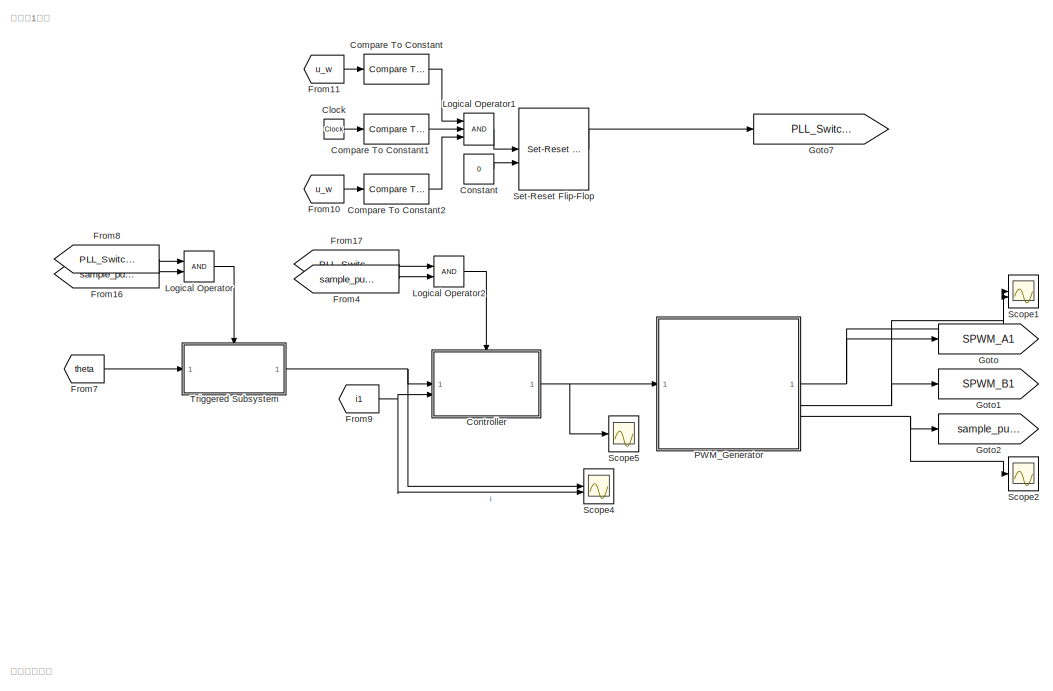
[diagram: root canvas - part 1/4, top right region]
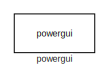
[diagram: root canvas - part 2/4, top left region]
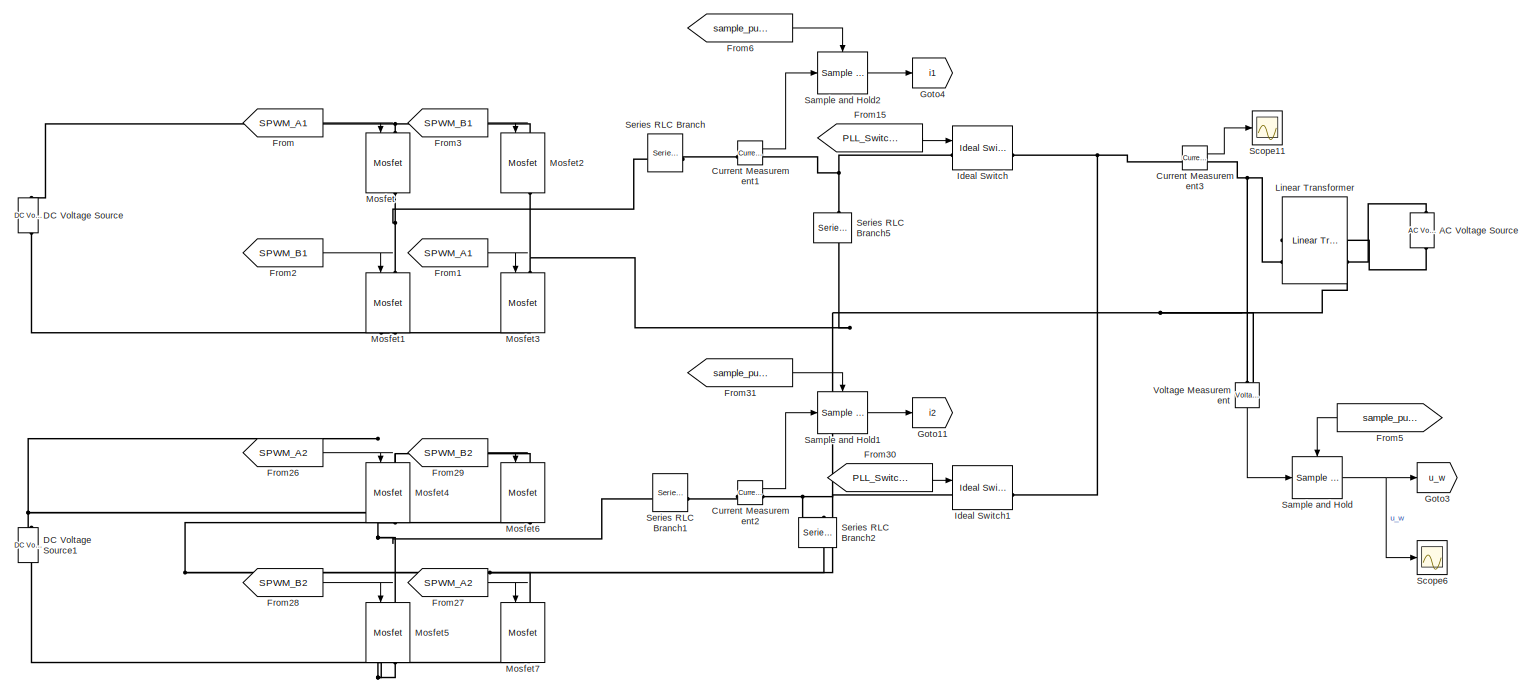
[diagram: root canvas - part 3/4, middle left region]
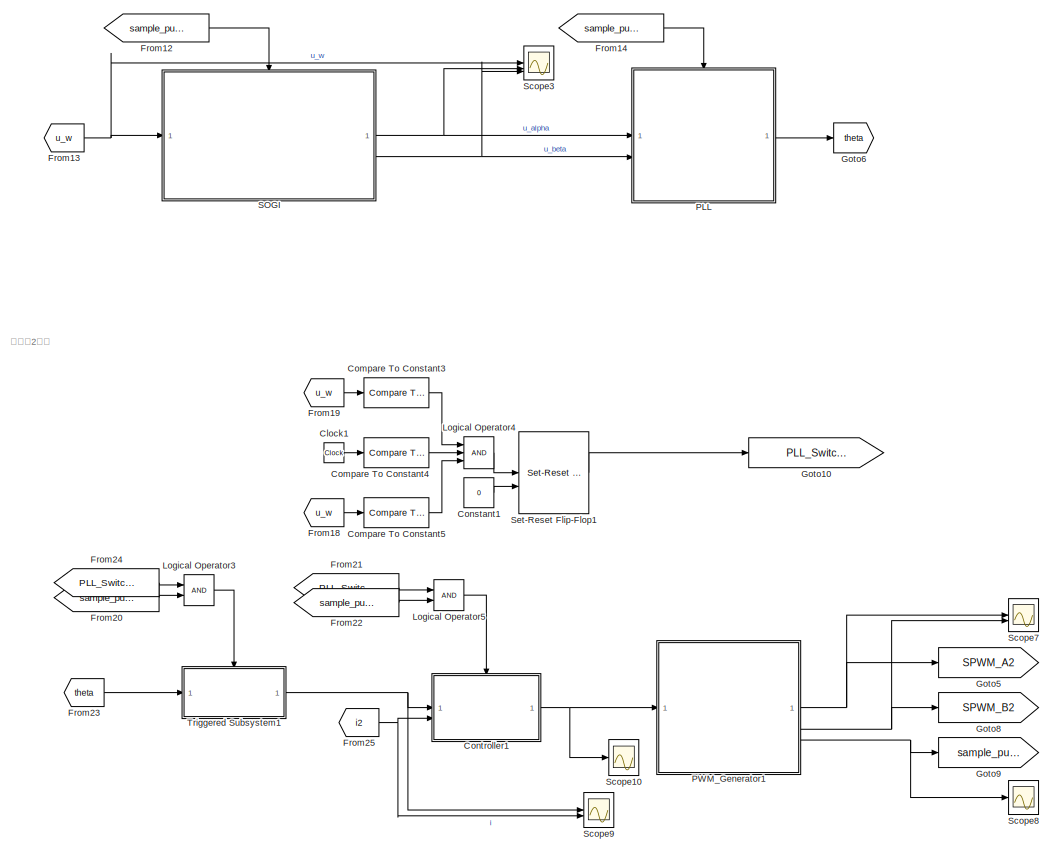
[diagram: root canvas - part 4/4, bottom right region]
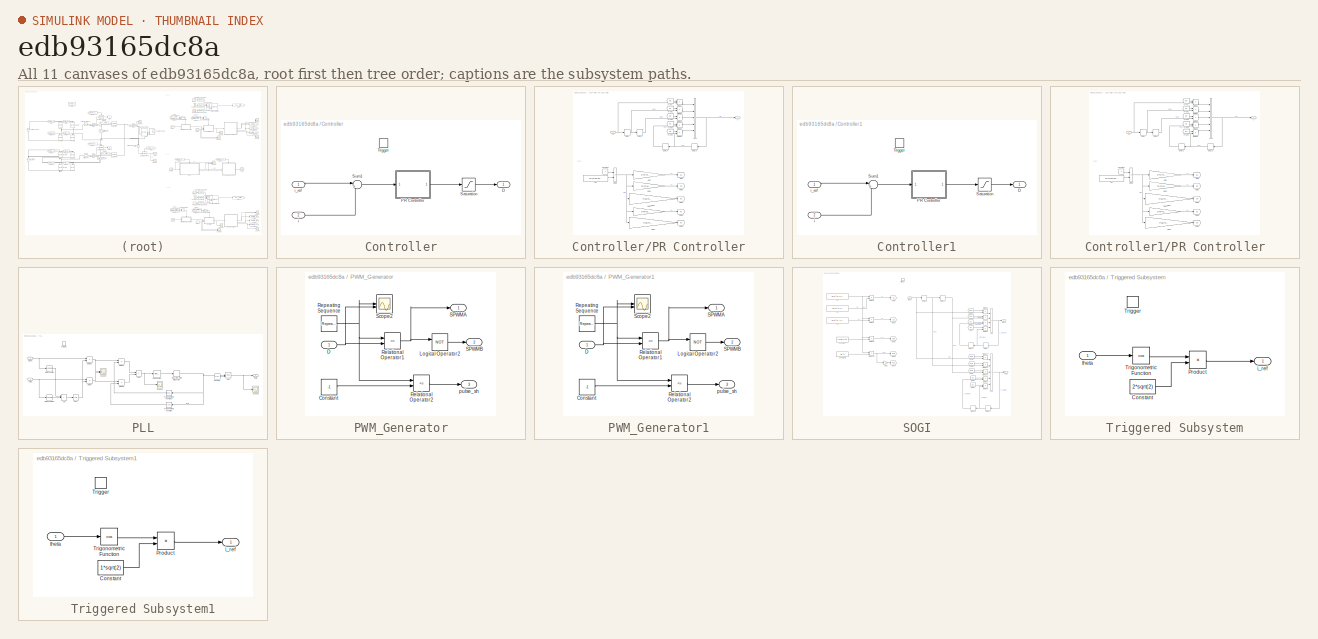
[diagram: thumbnail index - all 11 canvases of the model, root first then tree order]
MODEL slx_edb93165dc8a
KIND model
CONFIG AbsTol = auto
CONFIG EnableMultiTasking = off
CONFIG FixedStep = 1e-6
CONFIG MaxStep = 1e-7
CONFIG MinStep = auto
CONFIG RelTol = 1e-7
CONFIG SampleTimeConstraint = Unconstrained
CONFIG SolverName = VariableStepAuto
CONFIG StartTime = 0.0
CONFIG StopTime = 0.25
WORKSPACE source: mxarray member
WORKSPACE Kp = 1
WORKSPACE Kr = 100
WORKSPACE Ts = 2.5e-05
WORKSPACE wc = 6.28318530718
WORKSPACE wr = 314.159265359
BLOCK [Reference] AC Voltage Source  REF=spsACVoltageSourceLib/AC Voltage Source
  LibrarySourceBlock = sps_lib/Sources/AC Voltage Source
  SourceBlock = spsACVoltageSourceLib/AC Voltage Source
  SourceType = AC Voltage Source
BLOCK [Clock] Clock
BLOCK [Clock] Clock1
BLOCK [Reference] Compare To Constant  REF=simulink/Logic and Bit
Operations/Compare
To Constant
  SourceBlock = simulink/Logic and Bit\nOperations/Compare\nTo Constant
  SourceType = Compare To Constant
BLOCK [Reference] Compare To Constant1  REF=simulink/Logic and Bit
Operations/Compare
To Constant
  SourceBlock = simulink/Logic and Bit\nOperations/Compare\nTo Constant
  SourceType = Compare To Constant
BLOCK [Reference] Compare To Constant2  REF=simulink/Logic and Bit
Operations/Compare
To Constant
  SourceBlock = simulink/Logic and Bit\nOperations/Compare\nTo Constant
  SourceType = Compare To Constant
BLOCK [Reference] Compare To Constant3  REF=simulink/Logic and Bit
Operations/Compare
To Constant
  SourceBlock = simulink/Logic and Bit\nOperations/Compare\nTo Constant
  SourceType = Compare To Constant
BLOCK [Reference] Compare To Constant4  REF=simulink/Logic and Bit
Operations/Compare
To Constant
  SourceBlock = simulink/Logic and Bit\nOperations/Compare\nTo Constant
  SourceType = Compare To Constant
BLOCK [Reference] Compare To Constant5  REF=simulink/Logic and Bit
Operations/Compare
To Constant
  SourceBlock = simulink/Logic and Bit\nOperations/Compare\nTo Constant
  SourceType = Compare To Constant
BLOCK [Constant] Constant
  Value = 0
BLOCK [Constant] Constant1
  Value = 0
BLOCK [SubSystem] Controller
BLOCK [Outport] Controller/D
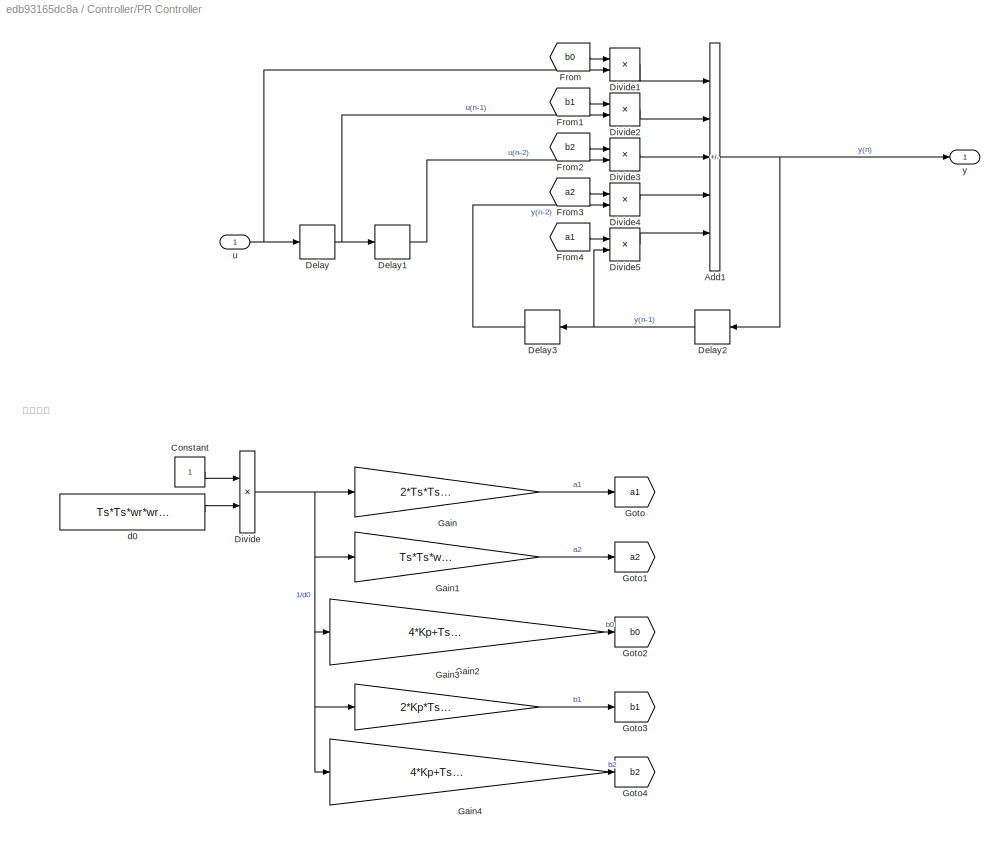
BLOCK [SubSystem] Controller/PR Controller
BLOCK [Sum] Controller/PR Controller/Add1
  IconShape = rectangular
  Inputs = +++--
BLOCK [Constant] Controller/PR Controller/Constant
BLOCK [Delay] Controller/PR Controller/Delay
  DelayLength = 1
  InitialCondition = 0
  InputPortMap = u0
BLOCK [Delay] Controller/PR Controller/Delay1
  DelayLength = 1
  InitialCondition = 0
  InputPortMap = u0
BLOCK [Delay] Controller/PR Controller/Delay2
  DelayLength = 1
  InitialCondition = 0
  InputPortMap = u0
  NameLocation = top
BLOCK [Delay] Controller/PR Controller/Delay3
  DelayLength = 1
  InitialCondition = 0
  InputPortMap = u0
  NameLocation = top
BLOCK [Product] Controller/PR Controller/Divide
  Inputs = */
BLOCK [Product] Controller/PR Controller/Divide1
  Inputs = **
BLOCK [Product] Controller/PR Controller/Divide2
  Inputs = **
BLOCK [Product] Controller/PR Controller/Divide3
  Inputs = **
BLOCK [Product] Controller/PR Controller/Divide4
  Inputs = **
BLOCK [Product] Controller/PR Controller/Divide5
  Inputs = **
BLOCK [From] Controller/PR Controller/From
  GotoTag = b0
BLOCK [From] Controller/PR Controller/From1
  GotoTag = b1
BLOCK [From] Controller/PR Controller/From2
  GotoTag = b2
BLOCK [From] Controller/PR Controller/From3
  GotoTag = a2
BLOCK [From] Controller/PR Controller/From4
  GotoTag = a1
BLOCK [Gain] Controller/PR Controller/Gain
  Gain = 2*Ts*Ts*wr*wr-8
BLOCK [Gain] Controller/PR Controller/Gain1
  Gain = Ts*Ts*wr*wr+4-4*Ts*wc
BLOCK [Gain] Controller/PR Controller/Gain2
  Gain = 4*Kp+Ts*Ts*Kp*wr*wr+4*Ts*Kp*wc+4*Ts*Kr*wc
BLOCK [Gain] Controller/PR Controller/Gain3
  Gain = 2*Kp*Ts*Ts*wr*wr - 8*Kp
BLOCK [Gain] Controller/PR Controller/Gain4
  Gain = 4*Kp+Ts*Ts*Kp*wr*wr-4*Ts*Kp*wc - 4.0*Ts*Kr*wc
BLOCK [Goto] Controller/PR Controller/Goto
  GotoTag = a1
BLOCK [Goto] Controller/PR Controller/Goto1
  GotoTag = a2
BLOCK [Goto] Controller/PR Controller/Goto2
  GotoTag = b0
BLOCK [Goto] Controller/PR Controller/Goto3
  GotoTag = b1
BLOCK [Goto] Controller/PR Controller/Goto4
  GotoTag = b2
BLOCK [Constant] Controller/PR Controller/d0
  Value = Ts*Ts*wr*wr+4*wc*Ts+4
BLOCK [Inport] Controller/PR Controller/u
BLOCK [Outport] Controller/PR Controller/y
BLOCK [Saturate] Controller/Saturation
  LowerLimit = -1
  UpperLimit = 1
BLOCK [Sum] Controller/Sum1
  Inputs = |+-
BLOCK [TriggerPort] Controller/Trigger
  StatesWhenEnabling = held
  VariantControl = (inherit)
BLOCK [Inport] Controller/i
  Port = 2
BLOCK [Inport] Controller/i_ref
BLOCK [SubSystem] Controller1
BLOCK [Outport] Controller1/D
BLOCK [SubSystem] Controller1/PR Controller
BLOCK [Sum] Controller1/PR Controller/Add1
  IconShape = rectangular
  Inputs = +++--
BLOCK [Constant] Controller1/PR Controller/Constant
BLOCK [Delay] Controller1/PR Controller/Delay
  DelayLength = 1
  InitialCondition = 0
  InputPortMap = u0
BLOCK [Delay] Controller1/PR Controller/Delay1
  DelayLength = 1
  InitialCondition = 0
  InputPortMap = u0
BLOCK [Delay] Controller1/PR Controller/Delay2
  DelayLength = 1
  InitialCondition = 0
  InputPortMap = u0
  NameLocation = top
BLOCK [Delay] Controller1/PR Controller/Delay3
  DelayLength = 1
  InitialCondition = 0
  InputPortMap = u0
  NameLocation = top
BLOCK [Product] Controller1/PR Controller/Divide
  Inputs = */
BLOCK [Product] Controller1/PR Controller/Divide1
  Inputs = **
BLOCK [Product] Controller1/PR Controller/Divide2
  Inputs = **
BLOCK [Product] Controller1/PR Controller/Divide3
  Inputs = **
BLOCK [Product] Controller1/PR Controller/Divide4
  Inputs = **
BLOCK [Product] Controller1/PR Controller/Divide5
  Inputs = **
BLOCK [From] Controller1/PR Controller/From
  GotoTag = b0
BLOCK [From] Controller1/PR Controller/From1
  GotoTag = b1
BLOCK [From] Controller1/PR Controller/From2
  GotoTag = b2
BLOCK [From] Controller1/PR Controller/From3
  GotoTag = a2
BLOCK [From] Controller1/PR Controller/From4
  GotoTag = a1
BLOCK [Gain] Controller1/PR Controller/Gain
  Gain = 2*Ts*Ts*wr*wr-8
BLOCK [Gain] Controller1/PR Controller/Gain1
  Gain = Ts*Ts*wr*wr+4-4*Ts*wc
BLOCK [Gain] Controller1/PR Controller/Gain2
  Gain = 4*Kp+Ts*Ts*Kp*wr*wr+4*Ts*Kp*wc+4*Ts*Kr*wc
BLOCK [Gain] Controller1/PR Controller/Gain3
  Gain = 2*Kp*Ts*Ts*wr*wr - 8*Kp
BLOCK [Gain] Controller1/PR Controller/Gain4
  Gain = 4*Kp+Ts*Ts*Kp*wr*wr-4*Ts*Kp*wc - 4.0*Ts*Kr*wc
BLOCK [Goto] Controller1/PR Controller/Goto
  GotoTag = a1
BLOCK [Goto] Controller1/PR Controller/Goto1
  GotoTag = a2
BLOCK [Goto] Controller1/PR Controller/Goto2
  GotoTag = b0
BLOCK [Goto] Controller1/PR Controller/Goto3
  GotoTag = b1
BLOCK [Goto] Controller1/PR Controller/Goto4
  GotoTag = b2
BLOCK [Constant] Controller1/PR Controller/d0
  Value = Ts*Ts*wr*wr+4*wc*Ts+4
BLOCK [Inport] Controller1/PR Controller/u
BLOCK [Outport] Controller1/PR Controller/y
BLOCK [Saturate] Controller1/Saturation
  LowerLimit = -1
  UpperLimit = 1
BLOCK [Sum] Controller1/Sum1
  Inputs = |+-
BLOCK [TriggerPort] Controller1/Trigger
  StatesWhenEnabling = held
  VariantControl = (inherit)
BLOCK [Inport] Controller1/i
  Port = 2
BLOCK [Inport] Controller1/i_ref
BLOCK [Reference] Current Measurement1  REF=spsCurrentMeasurementLib/Current Measurement
  LibrarySourceBlock = sps_lib/Sensors and Measurements/Current Measurement
  SourceBlock = spsCurrentMeasurementLib/Current Measurement
  SourceType = Current Measurement
  UserDataPersistent = on
BLOCK [Reference] Current Measurement2  REF=spsCurrentMeasurementLib/Current Measurement
  LibrarySourceBlock = sps_lib/Sensors and Measurements/Current Measurement
  SourceBlock = spsCurrentMeasurementLib/Current Measurement
  SourceType = Current Measurement
  UserDataPersistent = on
BLOCK [Reference] Current Measurement3  REF=spsCurrentMeasurementLib/Current Measurement
  LibrarySourceBlock = sps_lib/Sensors and Measurements/Current Measurement
  SourceBlock = spsCurrentMeasurementLib/Current Measurement
  SourceType = Current Measurement
  UserDataPersistent = on
BLOCK [Reference] DC Voltage Source  REF=spsDCVoltageSourceLib/DC Voltage Source
  LibrarySourceBlock = sps_lib/Sources/DC Voltage Source
  SourceBlock = spsDCVoltageSourceLib/DC Voltage Source
  SourceType = DC Voltage Source
BLOCK [Reference] DC Voltage Source1  REF=spsDCVoltageSourceLib/DC Voltage Source
  LibrarySourceBlock = sps_lib/Sources/DC Voltage Source
  SourceBlock = spsDCVoltageSourceLib/DC Voltage Source
  SourceType = DC Voltage Source
BLOCK [From] From
  GotoTag = SPWM_A1
BLOCK [From] From1
  GotoTag = SPWM_A1
BLOCK [From] From10
  GotoTag = u_w
BLOCK [From] From11
  GotoTag = u_w
BLOCK [From] From12
  GotoTag = sample_pulse1
BLOCK [From] From13
  GotoTag = u_w
BLOCK [From] From14
  GotoTag = sample_pulse1
BLOCK [From] From15
  GotoTag = PLL_Switch_pulse1
BLOCK [From] From16
  GotoTag = sample_pulse1
BLOCK [From] From17
  GotoTag = PLL_Switch_pulse1
BLOCK [From] From18
  GotoTag = u_w
BLOCK [From] From19
  GotoTag = u_w
BLOCK [From] From2
  GotoTag = SPWM_B1
BLOCK [From] From20
  GotoTag = sample_pulse2
BLOCK [From] From21
  GotoTag = PLL_Switch_pulse2
BLOCK [From] From22
  GotoTag = sample_pulse2
BLOCK [From] From23
  GotoTag = theta
BLOCK [From] From24
  GotoTag = PLL_Switch_pulse2
BLOCK [From] From25
  GotoTag = i2
BLOCK [From] From26
  GotoTag = SPWM_A2
BLOCK [From] From27
  GotoTag = SPWM_A2
BLOCK [From] From28
  GotoTag = SPWM_B2
BLOCK [From] From29
  GotoTag = SPWM_B2
BLOCK [From] From3
  GotoTag = SPWM_B1
BLOCK [From] From30
  GotoTag = PLL_Switch_pulse2
BLOCK [From] From31
  GotoTag = sample_pulse2
BLOCK [From] From4
  GotoTag = sample_pulse1
BLOCK [From] From5
  GotoTag = sample_pulse1
  NameLocation = top
BLOCK [From] From6
  GotoTag = sample_pulse1
BLOCK [From] From7
  GotoTag = theta
BLOCK [From] From8
  GotoTag = PLL_Switch_pulse1
BLOCK [From] From9
  GotoTag = i1
BLOCK [Goto] Goto
  GotoTag = SPWM_A1
BLOCK [Goto] Goto1
  GotoTag = SPWM_B1
BLOCK [Goto] Goto10
  GotoTag = PLL_Switch_pulse2
BLOCK [Goto] Goto11
  GotoTag = i2
BLOCK [Goto] Goto2
  GotoTag = sample_pulse1
BLOCK [Goto] Goto3
  GotoTag = u_w
BLOCK [Goto] Goto4
  GotoTag = i1
BLOCK [Goto] Goto5
  GotoTag = SPWM_A2
BLOCK [Goto] Goto6
  GotoTag = theta
BLOCK [Goto] Goto7
  GotoTag = PLL_Switch_pulse1
BLOCK [Goto] Goto8
  GotoTag = SPWM_B2
BLOCK [Goto] Goto9
  GotoTag = sample_pulse2
BLOCK [Reference] Ideal Switch  REF=spsIdealSwitchLib/Ideal Switch
  LibrarySourceBlock = sps_lib/Power Electronics/Ideal Switch
  SourceBlock = spsIdealSwitchLib/Ideal Switch
  SourceType = Ideal Switch
BLOCK [Reference] Ideal Switch1  REF=spsIdealSwitchLib/Ideal Switch
  LibrarySourceBlock = sps_lib/Power Electronics/Ideal Switch
  SourceBlock = spsIdealSwitchLib/Ideal Switch
  SourceType = Ideal Switch
BLOCK [Reference] Linear Transformer  REF=spsLinearTransformerLib/Linear Transformer
  LibrarySourceBlock = sps_lib/Power Grid Elements/Linear Transformer
  NameLocation = top
  SourceBlock = spsLinearTransformerLib/Linear Transformer
  SourceType = Linear Transformer
BLOCK [Logic] Logical Operator
  AllPortsSameDT = off
  OutDataTypeStr = boolean
BLOCK [Logic] Logical Operator1
  AllPortsSameDT = off
  Inputs = 3
  OutDataTypeStr = boolean
BLOCK [Logic] Logical Operator2
  AllPortsSameDT = off
  OutDataTypeStr = boolean
BLOCK [Logic] Logical Operator3
  AllPortsSameDT = off
  OutDataTypeStr = boolean
BLOCK [Logic] Logical Operator4
  AllPortsSameDT = off
  Inputs = 3
  OutDataTypeStr = boolean
BLOCK [Logic] Logical Operator5
  AllPortsSameDT = off
  OutDataTypeStr = boolean
BLOCK [Reference] Mosfet  REF=spsMosfetLib/Mosfet
  LibrarySourceBlock = sps_lib/Power Electronics/Mosfet
  NameLocation = left
  SourceBlock = spsMosfetLib/Mosfet
  SourceType = Mosfet
BLOCK [Reference] Mosfet1  REF=spsMosfetLib/Mosfet
  LibrarySourceBlock = sps_lib/Power Electronics/Mosfet
  NameLocation = left
  SourceBlock = spsMosfetLib/Mosfet
  SourceType = Mosfet
BLOCK [Reference] Mosfet2  REF=spsMosfetLib/Mosfet
  LibrarySourceBlock = sps_lib/Power Electronics/Mosfet
  NameLocation = left
  SourceBlock = spsMosfetLib/Mosfet
  SourceType = Mosfet
BLOCK [Reference] Mosfet3  REF=spsMosfetLib/Mosfet
  LibrarySourceBlock = sps_lib/Power Electronics/Mosfet
  NameLocation = left
  SourceBlock = spsMosfetLib/Mosfet
  SourceType = Mosfet
BLOCK [Reference] Mosfet4  REF=spsMosfetLib/Mosfet
  LibrarySourceBlock = sps_lib/Power Electronics/Mosfet
  NameLocation = left
  SourceBlock = spsMosfetLib/Mosfet
  SourceType = Mosfet
BLOCK [Reference] Mosfet5  REF=spsMosfetLib/Mosfet
  LibrarySourceBlock = sps_lib/Power Electronics/Mosfet
  NameLocation = left
  SourceBlock = spsMosfetLib/Mosfet
  SourceType = Mosfet
BLOCK [Reference] Mosfet6  REF=spsMosfetLib/Mosfet
  LibrarySourceBlock = sps_lib/Power Electronics/Mosfet
  NameLocation = left
  SourceBlock = spsMosfetLib/Mosfet
  SourceType = Mosfet
BLOCK [Reference] Mosfet7  REF=spsMosfetLib/Mosfet
  LibrarySourceBlock = sps_lib/Power Electronics/Mosfet
  NameLocation = left
  SourceBlock = spsMosfetLib/Mosfet
  SourceType = Mosfet
BLOCK [SubSystem] PLL
  TreatAsAtomicUnit = on
BLOCK [Sum] PLL/Add
  IconShape = rectangular
  Inputs = +++
BLOCK [Sum] PLL/Add1
  IconShape = rectangular
  Inputs = -+
BLOCK [Constant] PLL/Constant
  Value = 2*pi
BLOCK [DiscreteIntegrator] PLL/Discrete-Time Integrator
  ICPrevOutput = DiscIntNeverNeededParam
  ICPrevScaledInput = DiscIntNeverNeededParam
  InitialConditionSetting = Auto
  SampleTime = -1
BLOCK [Product] PLL/Divide
  Inputs = */
BLOCK [Product] PLL/Divide1
  Inputs = */
BLOCK [Product] PLL/Divide2
  Inputs = **
BLOCK [Product] PLL/Divide3
  Inputs = **
BLOCK [Math] PLL/Math Function
  Operator = square
BLOCK [Math] PLL/Math Function1
  Operator = square
BLOCK [Math] PLL/Mod
  Operator = mod
BLOCK [Reference] PLL/PID Controller  REF=slpidlib/PID Controller
  LibrarySourceBlock = simulink/Continuous/PID Controller
  SourceBlock = slpidlib/PID Controller
  SourceType = PID 1dof
BLOCK [Scope] PLL/Scope1
  Floating = off
  NumInputPorts = 1
  ScopeSpecificationString = Simulink.scopes.TimeScopeBlockCfg('CurrentConfiguration', extmgr.ConfigurationSet(extmgr.Configuration('Core','General UI',true,'FigureColor',[1 1 1]),extmgr.Configuration('Core','Source UI',true),extmgr.Configuration('Sources','WiredSimulink',true,'DataLoggingVariableName','ScopeData4'),extmgr.Configuration('Visuals','Time Domain',true,'SerializedDisplays',{struct('MinYLimReal','-0.00633','MaxYLi...<+2303ch>
BLOCK [Scope] PLL/Scope2
  Floating = off
  NumInputPorts = 1
  ScopeSpecificationString = Simulink.scopes.TimeScopeBlockCfg('CurrentConfiguration', extmgr.ConfigurationSet(extmgr.Configuration('Core','General UI',true,'FigureColor',[1 1 1]),extmgr.Configuration('Core','Source UI',true),extmgr.Configuration('Sources','WiredSimulink',true,'DataLoggingVariableName','ScopeData5'),extmgr.Configuration('Visuals','Time Domain',true,'SerializedDisplays',{struct('MinYLimReal','-0.78516','MaxYLi...<+2633ch>
BLOCK [Scope] PLL/Scope4
  Floating = off
  NumInputPorts = 2
  ScopeSpecificationString = Simulink.scopes.TimeScopeBlockCfg('CurrentConfiguration', extmgr.ConfigurationSet(extmgr.Configuration('Core','General UI',true,'FigureColor',[1 1 1]),extmgr.Configuration('Core','Source UI',true),extmgr.Configuration('Sources','WiredSimulink',true,'DataLoggingVariableName','ScopeData3'),extmgr.Configuration('Visuals','Time Domain',true,'SerializedDisplays',{struct('MinYLimReal','-1.24465','MaxYLi...<+2311ch>
BLOCK [Sqrt] PLL/Sqrt
BLOCK [TriggerPort] PLL/Trigger
  StatesWhenEnabling = held
  VariantControl = (inherit)
BLOCK [Trigonometry] PLL/Trigonometric Function
  NameLocation = top
  Operator = cos
BLOCK [Trigonometry] PLL/Trigonometric Function1
  NameLocation = top
BLOCK [Inport] PLL/alpha
BLOCK [Inport] PLL/beta
  Port = 2
BLOCK [Outport] PLL/theta
BLOCK [SubSystem] PWM_Generator
BLOCK [Constant] PWM_Generator/Constant
  Value = -1
BLOCK [Inport] PWM_Generator/D
BLOCK [Logic] PWM_Generator/Logical Operator2
  AllPortsSameDT = off
  Operator = NOT
  OutDataTypeStr = boolean
BLOCK [RelationalOperator] PWM_Generator/Relational Operator1
  InputSameDT = off
  Operator = <=
  OutDataTypeStr = boolean
  RndMeth = Simplest
BLOCK [RelationalOperator] PWM_Generator/Relational Operator2
  InputSameDT = off
  Operator = <=
  OutDataTypeStr = boolean
  RndMeth = Simplest
BLOCK [Reference] PWM_Generator/Repeating Sequence  REF=simulink/Sources/Repeating
Sequence
  SourceBlock = simulink/Sources/Repeating\nSequence
  SourceType = Repeating table
BLOCK [Outport] PWM_Generator/SPWMA
BLOCK [Outport] PWM_Generator/SPWMB
  Port = 2
BLOCK [Scope] PWM_Generator/Scope2
  Floating = off
  NumInputPorts = 2
  ScopeSpecificationString = Simulink.scopes.TimeScopeBlockCfg('CurrentConfiguration', extmgr.ConfigurationSet(extmgr.Configuration('Core','General UI',true,'FigureColor',[1 1 1]),extmgr.Configuration('Core','Source UI',true),extmgr.Configuration('Sources','WiredSimulink',true,'DataLoggingVariableName','ScopeData2'),extmgr.Configuration('Visuals','Time Domain',true,'SerializedDisplays',{struct('MinYLimReal','-1.0706','MaxYLim...<+2712ch>
BLOCK [Outport] PWM_Generator/pulse_sh
  Port = 3
BLOCK [SubSystem] PWM_Generator1
BLOCK [Constant] PWM_Generator1/Constant
  Value = -1
BLOCK [Inport] PWM_Generator1/D
BLOCK [Logic] PWM_Generator1/Logical Operator2
  AllPortsSameDT = off
  Operator = NOT
  OutDataTypeStr = boolean
BLOCK [RelationalOperator] PWM_Generator1/Relational Operator1
  InputSameDT = off
  Operator = <=
  OutDataTypeStr = boolean
  RndMeth = Simplest
BLOCK [RelationalOperator] PWM_Generator1/Relational Operator2
  InputSameDT = off
  Operator = <=
  OutDataTypeStr = boolean
  RndMeth = Simplest
BLOCK [Reference] PWM_Generator1/Repeating Sequence  REF=simulink/Sources/Repeating
Sequence
  SourceBlock = simulink/Sources/Repeating\nSequence
  SourceType = Repeating table
BLOCK [Outport] PWM_Generator1/SPWMA
BLOCK [Outport] PWM_Generator1/SPWMB
  Port = 2
BLOCK [Scope] PWM_Generator1/Scope2
  Floating = off
  NumInputPorts = 2
  ScopeSpecificationString = Simulink.scopes.TimeScopeBlockCfg('CurrentConfiguration', extmgr.ConfigurationSet(extmgr.Configuration('Core','General UI',true,'FigureColor',[1 1 1]),extmgr.Configuration('Core','Source UI',true),extmgr.Configuration('Sources','WiredSimulink',true,'DataLoggingVariableName','ScopeData2'),extmgr.Configuration('Visuals','Time Domain',true,'SerializedDisplays',{struct('MinYLimReal','-1.0706','MaxYLim...<+2712ch>
BLOCK [Outport] PWM_Generator1/pulse_sh
  Port = 3
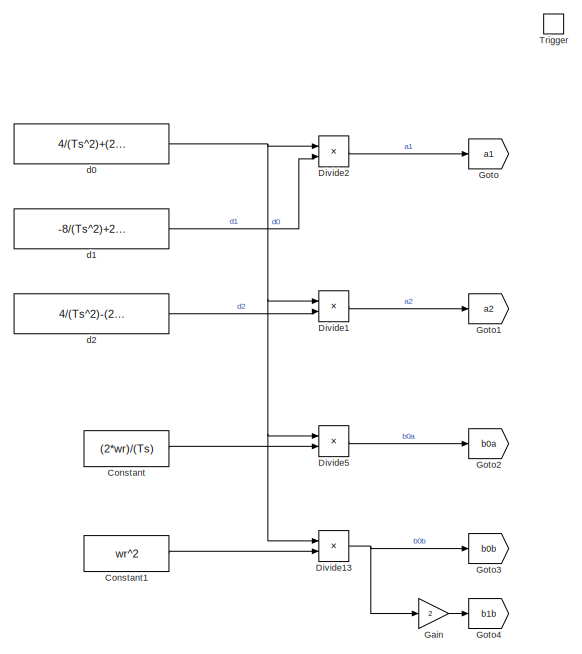
[diagram: SOGI - part 1/2, middle left region]
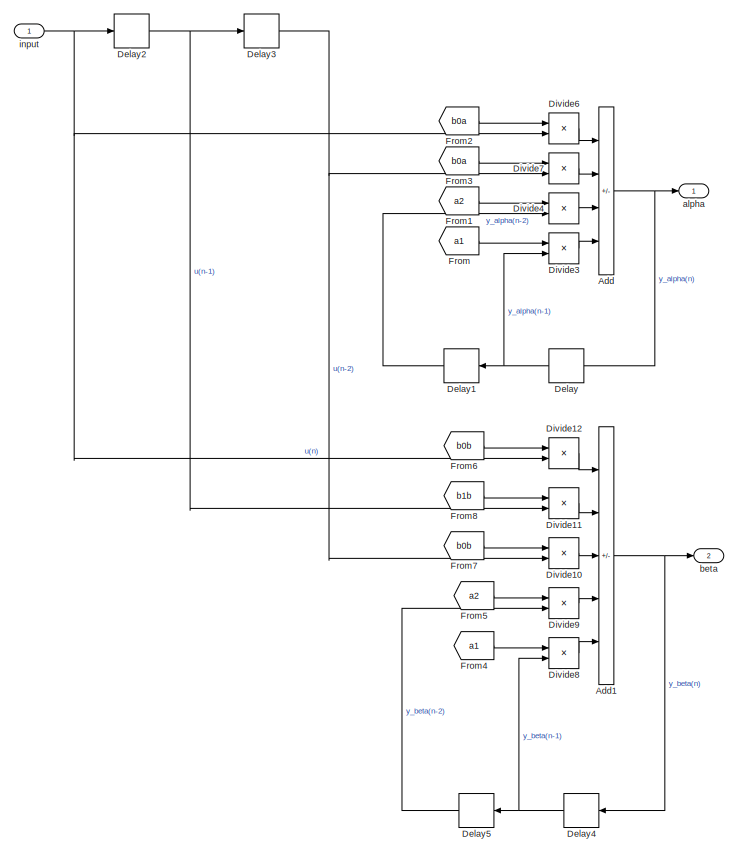
[diagram: SOGI - part 2/2, right side, full height]
BLOCK [SubSystem] SOGI
  TreatAsAtomicUnit = on
BLOCK [Sum] SOGI/Add
  IconShape = rectangular
  Inputs = +---
BLOCK [Sum] SOGI/Add1
  IconShape = rectangular
  Inputs = +++--
BLOCK [Constant] SOGI/Constant
  Value = (2*wr)/(Ts)
BLOCK [Constant] SOGI/Constant1
  Value = wr^2
BLOCK [Delay] SOGI/Delay
  DelayLength = 1
  InitialCondition = 0
  InputPortMap = u0
  NameLocation = top
BLOCK [Delay] SOGI/Delay1
  DelayLength = 1
  InitialCondition = 0
  InputPortMap = u0
  NameLocation = top
BLOCK [Delay] SOGI/Delay2
  DelayLength = 1
  InitialCondition = 0
  InputPortMap = u0
BLOCK [Delay] SOGI/Delay3
  DelayLength = 1
  InitialCondition = 0
  InputPortMap = u0
BLOCK [Delay] SOGI/Delay4
  DelayLength = 1
  InitialCondition = 0
  InputPortMap = u0
  NameLocation = top
BLOCK [Delay] SOGI/Delay5
  DelayLength = 1
  InitialCondition = 0
  InputPortMap = u0
  NameLocation = top
BLOCK [Product] SOGI/Divide1
  Inputs = /*
BLOCK [Product] SOGI/Divide10
  Inputs = **
BLOCK [Product] SOGI/Divide11
  Inputs = **
BLOCK [Product] SOGI/Divide12
  Inputs = **
BLOCK [Product] SOGI/Divide13
  Inputs = /*
BLOCK [Product] SOGI/Divide2
  Inputs = /*
BLOCK [Product] SOGI/Divide3
  Inputs = **
BLOCK [Product] SOGI/Divide4
  Inputs = **
BLOCK [Product] SOGI/Divide5
  Inputs = /*
BLOCK [Product] SOGI/Divide6
  Inputs = **
BLOCK [Product] SOGI/Divide7
  Inputs = **
BLOCK [Product] SOGI/Divide8
  Inputs = **
BLOCK [Product] SOGI/Divide9
  Inputs = **
BLOCK [From] SOGI/From
  GotoTag = a1
BLOCK [From] SOGI/From1
  GotoTag = a2
BLOCK [From] SOGI/From2
  GotoTag = b0a
BLOCK [From] SOGI/From3
  GotoTag = b0a
BLOCK [From] SOGI/From4
  GotoTag = a1
BLOCK [From] SOGI/From5
  GotoTag = a2
BLOCK [From] SOGI/From6
  GotoTag = b0b
BLOCK [From] SOGI/From7
  GotoTag = b0b
BLOCK [From] SOGI/From8
  GotoTag = b1b
BLOCK [Gain] SOGI/Gain
  Gain = 2
BLOCK [Goto] SOGI/Goto
  GotoTag = a1
BLOCK [Goto] SOGI/Goto1
  GotoTag = a2
BLOCK [Goto] SOGI/Goto2
  GotoTag = b0a
BLOCK [Goto] SOGI/Goto3
  GotoTag = b0b
BLOCK [Goto] SOGI/Goto4
  GotoTag = b1b
BLOCK [TriggerPort] SOGI/Trigger
  StatesWhenEnabling = held
  VariantControl = (inherit)
BLOCK [Outport] SOGI/alpha
BLOCK [Outport] SOGI/beta
  Port = 2
BLOCK [Constant] SOGI/d0
  Value = 4/(Ts^2)+(2*wr)/(Ts)+(wr^2)
BLOCK [Constant] SOGI/d1
  Value = -8/(Ts^2)+2*(wr^2)
BLOCK [Constant] SOGI/d2
  Value = 4/(Ts^2)-(2*wr)/(Ts)+(wr^2)
BLOCK [Inport] SOGI/input
BLOCK [Reference] Sample and Hold  REF=dspsigops/Sample
and Hold
  SourceBlock = dspsigops/Sample\nand Hold
  SourceType = Sample and Hold
BLOCK [Reference] Sample and Hold1  REF=dspsigops/Sample
and Hold
  SourceBlock = dspsigops/Sample\nand Hold
  SourceType = Sample and Hold
BLOCK [Reference] Sample and Hold2  REF=dspsigops/Sample
and Hold
  SourceBlock = dspsigops/Sample\nand Hold
  SourceType = Sample and Hold
BLOCK [Scope] Scope1
  Floating = off
  NumInputPorts = 2
  ScopeSpecificationString = Simulink.scopes.TimeScopeBlockCfg('CurrentConfiguration', extmgr.ConfigurationSet(extmgr.Configuration('Core','General UI',true,'FigureColor',[1 1 1]),extmgr.Configuration('Core','Source UI',true),extmgr.Configuration('Sources','WiredSimulink',true,'DataLoggingVariableName','ScopeData1'),extmgr.Configuration('Visuals','Time Domain',true,'SerializedDisplays',{struct('MinYLimReal','-0.01597','MaxYLi...<+2736ch>
BLOCK [Scope] Scope10
  Floating = off
  NumInputPorts = 1
  ScopeSpecificationString = Simulink.scopes.TimeScopeBlockCfg('CurrentConfiguration', extmgr.ConfigurationSet(extmgr.Configuration('Core','General UI',true,'FigureColor',[1 1 1]),extmgr.Configuration('Core','Source UI',true),extmgr.Configuration('Sources','WiredSimulink',true,'DataLoggingVariableName','ScopeData1'),extmgr.Configuration('Visuals','Time Domain',true,'SerializedDisplays',{struct('MinYLimReal','-0.33001','MaxYLi...<+2612ch>
BLOCK [Scope] Scope11
  Floating = off
  NumInputPorts = 1
  ScopeSpecificationString = Simulink.scopes.TimeScopeBlockCfg('CurrentConfiguration', extmgr.ConfigurationSet(extmgr.Configuration('Core','General UI',true,'FigureColor',[1 1 1]),extmgr.Configuration('Core','Source UI',true),extmgr.Configuration('Sources','WiredSimulink',true,'DataLoggingVariableName','ScopeData5'),extmgr.Configuration('Visuals','Time Domain',true,'SerializedDisplays',{struct('MinYLimReal','-8.94111','MaxYLi...<+2695ch>
BLOCK [Scope] Scope2
  Floating = off
  NumInputPorts = 1
  ScopeSpecificationString = Simulink.scopes.TimeScopeBlockCfg('CurrentConfiguration', extmgr.ConfigurationSet(extmgr.Configuration('Core','General UI',true,'FigureColor',[1 1 1]),extmgr.Configuration('Core','Source UI',true),extmgr.Configuration('Sources','WiredSimulink',true,'DataLoggingVariableName','ScopeData1'),extmgr.Configuration('Visuals','Time Domain',true,'SerializedDisplays',{struct('MinYLimReal','-0.03235','MaxYLi...<+2682ch>
BLOCK [Scope] Scope3
  Floating = off
  NumInputPorts = 3
  ScopeSpecificationString = Simulink.scopes.TimeScopeBlockCfg('CurrentConfiguration', extmgr.ConfigurationSet(extmgr.Configuration('Core','General UI',true,'FigureColor',[1 1 1]),extmgr.Configuration('Core','Source UI',true),extmgr.Configuration('Sources','WiredSimulink',true,'DataLoggingVariableName','ScopeData1'),extmgr.Configuration('Visuals','Time Domain',true,'SerializedDisplays',{struct('MinYLimReal','-42.46058','MaxYL...<+2327ch>
BLOCK [Scope] Scope4
  Floating = off
  NumInputPorts = 2
  ScopeSpecificationString = Simulink.scopes.TimeScopeBlockCfg('CurrentConfiguration', extmgr.ConfigurationSet(extmgr.Configuration('Core','General UI',true,'FigureColor',[1 1 1]),extmgr.Configuration('Core','Source UI',true),extmgr.Configuration('Sources','WiredSimulink',true,'DataLoggingVariableName','ScopeData2'),extmgr.Configuration('Visuals','Time Domain',true,'SerializedDisplays',{struct('MinYLimReal','-3.59708','MaxYLi...<+2322ch>
BLOCK [Scope] Scope5
  Floating = off
  NumInputPorts = 1
  ScopeSpecificationString = Simulink.scopes.TimeScopeBlockCfg('CurrentConfiguration', extmgr.ConfigurationSet(extmgr.Configuration('Core','General UI',true,'FigureColor',[1 1 1]),extmgr.Configuration('Core','Source UI',true),extmgr.Configuration('Sources','WiredSimulink',true,'DataLoggingVariableName','ScopeData6'),extmgr.Configuration('Visuals','Time Domain',true,'SerializedDisplays',{struct('MinYLimReal','-0.33001','MaxYLi...<+2612ch>
BLOCK [Scope] Scope6
  Floating = off
  NumInputPorts = 1
  ScopeSpecificationString = Simulink.scopes.TimeScopeBlockCfg('CurrentConfiguration', extmgr.ConfigurationSet(extmgr.Configuration('Core','General UI',true,'FigureColor',[1 1 1]),extmgr.Configuration('Core','Source UI',true),extmgr.Configuration('Sources','WiredSimulink',true,'DataLoggingVariableName','ScopeData7'),extmgr.Configuration('Visuals','Time Domain',true,'SerializedDisplays',{struct('MinYLimReal','-5.49439','MaxYLi...<+2674ch>
BLOCK [Scope] Scope7
  Floating = off
  NumInputPorts = 2
  ScopeSpecificationString = Simulink.scopes.TimeScopeBlockCfg('CurrentConfiguration', extmgr.ConfigurationSet(extmgr.Configuration('Core','General UI',true,'FigureColor',[1 1 1]),extmgr.Configuration('Core','Source UI',true),extmgr.Configuration('Sources','WiredSimulink',true,'DataLoggingVariableName','ScopeData2'),extmgr.Configuration('Visuals','Time Domain',true,'SerializedDisplays',{struct('MinYLimReal','-0.01597','MaxYLi...<+2736ch>
BLOCK [Scope] Scope8
  Floating = off
  NumInputPorts = 1
  ScopeSpecificationString = Simulink.scopes.TimeScopeBlockCfg('CurrentConfiguration', extmgr.ConfigurationSet(extmgr.Configuration('Core','General UI',true,'FigureColor',[1 1 1]),extmgr.Configuration('Core','Source UI',true),extmgr.Configuration('Sources','WiredSimulink',true,'DataLoggingVariableName','ScopeData3'),extmgr.Configuration('Visuals','Time Domain',true,'SerializedDisplays',{struct('MinYLimReal','-0.03235','MaxYLi...<+2682ch>
BLOCK [Scope] Scope9
  Floating = off
  NumInputPorts = 2
  ScopeSpecificationString = Simulink.scopes.TimeScopeBlockCfg('CurrentConfiguration', extmgr.ConfigurationSet(extmgr.Configuration('Core','General UI',true,'FigureColor',[1 1 1]),extmgr.Configuration('Core','Source UI',true),extmgr.Configuration('Sources','WiredSimulink',true,'DataLoggingVariableName','ScopeData4'),extmgr.Configuration('Visuals','Time Domain',true,'SerializedDisplays',{struct('MinYLimReal','-3.59532','MaxYLi...<+2323ch>
BLOCK [Reference] Series RLC Branch  REF=spsSeriesRLCBranchLib/Series RLC Branch
  LibrarySourceBlock = sps_lib/Passives/Series RLC Branch
  SourceBlock = spsSeriesRLCBranchLib/Series RLC Branch
  SourceType = Series RLC Branch
BLOCK [Reference] Series RLC Branch1  REF=spsSeriesRLCBranchLib/Series RLC Branch
  LibrarySourceBlock = sps_lib/Passives/Series RLC Branch
  SourceBlock = spsSeriesRLCBranchLib/Series RLC Branch
  SourceType = Series RLC Branch
BLOCK [Reference] Series RLC Branch2  REF=spsSeriesRLCBranchLib/Series RLC Branch
  LibrarySourceBlock = sps_lib/Passives/Series RLC Branch
  NameLocation = left
  SourceBlock = spsSeriesRLCBranchLib/Series RLC Branch
  SourceType = Series RLC Branch
BLOCK [Reference] Series RLC Branch5  REF=spsSeriesRLCBranchLib/Series RLC Branch
  LibrarySourceBlock = sps_lib/Passives/Series RLC Branch
  NameLocation = left
  SourceBlock = spsSeriesRLCBranchLib/Series RLC Branch
  SourceType = Series RLC Branch
BLOCK [Reference] Set-Reset Flip-Flop  REF=eeGeneralControl/Set-Reset Flip-Flop
  LibrarySourceBlock = ee_sl_lib/General Control/Set-Reset Flip-Flop
  SourceBlock = eeGeneralControl/Set-Reset Flip-Flop
  SourceType = Set-Reset Flip-Flop
BLOCK [Reference] Set-Reset Flip-Flop1  REF=eeGeneralControl/Set-Reset Flip-Flop
  LibrarySourceBlock = ee_sl_lib/General Control/Set-Reset Flip-Flop
  SourceBlock = eeGeneralControl/Set-Reset Flip-Flop
  SourceType = Set-Reset Flip-Flop
BLOCK [SubSystem] Triggered Subsystem
  TreatAsAtomicUnit = on
BLOCK [Constant] Triggered Subsystem/Constant
  Value = 2*sqrt(2)
BLOCK [Product] Triggered Subsystem/Product
BLOCK [TriggerPort] Triggered Subsystem/Trigger
  StatesWhenEnabling = held
  VariantControl = (inherit)
BLOCK [Trigonometry] Triggered Subsystem/Trigonometric Function
  Operator = cos
BLOCK [Outport] Triggered Subsystem/i_ref
BLOCK [Inport] Triggered Subsystem/theta
BLOCK [SubSystem] Triggered Subsystem1
  TreatAsAtomicUnit = on
BLOCK [Constant] Triggered Subsystem1/Constant
  Value = 1*sqrt(2)
BLOCK [Product] Triggered Subsystem1/Product
BLOCK [TriggerPort] Triggered Subsystem1/Trigger
  StatesWhenEnabling = held
  VariantControl = (inherit)
BLOCK [Trigonometry] Triggered Subsystem1/Trigonometric Function
  Operator = cos
BLOCK [Outport] Triggered Subsystem1/i_ref
BLOCK [Inport] Triggered Subsystem1/theta
BLOCK [Reference] Voltage Measurement  REF=spsVoltageMeasurementLib/Voltage Measurement
  LibrarySourceBlock = sps_lib/Sensors and Measurements/Voltage Measurement
  NameLocation = left
  SourceBlock = spsVoltageMeasurementLib/Voltage Measurement
  SourceType = Voltage Measurement
  UserDataPersistent = on
BLOCK [Reference] powergui  REF=sps_lib/powergui
  Priority = 1
  SourceBlock = sps_lib/powergui
  SourceType = PSB option menu block
ANNOTATION (root): 电网相位识别
ANNOTATION (root): 逆变器1控制
ANNOTATION (root): 逆变器2控制
ANNOTATION Controller/PR Controller: 系数计算
ANNOTATION Controller1/PR Controller: 系数计算
LINE Clock1:1 -> Compare To Constant4:1
LINE Clock:1 -> Compare To Constant1:1
LINE Compare To Constant1:1 -> Logical Operator1:2
LINE Compare To Constant2:1 -> Logical Operator1:3
LINE Compare To Constant3:1 -> Logical Operator4:1
LINE Compare To Constant4:1 -> Logical Operator4:2
LINE Compare To Constant5:1 -> Logical Operator4:3
LINE Compare To Constant:1 -> Logical Operator1:1
LINE Constant1:1 -> Set-Reset Flip-Flop1:2
LINE Constant:1 -> Set-Reset Flip-Flop:2
NET Controller/PR Controller/Add1:1 -> Controller/PR Controller/Delay2:1, Controller/PR Controller/y:1
LINE Controller/PR Controller/Constant:1 -> Controller/PR Controller/Divide:1
LINE Controller/PR Controller/Delay1:1 -> Controller/PR Controller/Divide3:2
NET Controller/PR Controller/Delay2:1 -> Controller/PR Controller/Delay3:1, Controller/PR Controller/Divide5:2
LINE Controller/PR Controller/Delay3:1 -> Controller/PR Controller/Divide4:2
NET Controller/PR Controller/Delay:1 -> Controller/PR Controller/Delay1:1, Controller/PR Controller/Divide2:2
LINE Controller/PR Controller/Divide1:1 -> Controller/PR Controller/Add1:1
LINE Controller/PR Controller/Divide2:1 -> Controller/PR Controller/Add1:2
LINE Controller/PR Controller/Divide3:1 -> Controller/PR Controller/Add1:3
LINE Controller/PR Controller/Divide4:1 -> Controller/PR Controller/Add1:4
LINE Controller/PR Controller/Divide5:1 -> Controller/PR Controller/Add1:5
NET Controller/PR Controller/Divide:1 -> Controller/PR Controller/Gain1:1, Controller/PR Controller/Gain2:1, Controller/PR Controller/Gain3:1, Controller/PR Controller/Gain4:1, Controller/PR Controller/Gain:1
LINE Controller/PR Controller/From1:1 -> Controller/PR Controller/Divide2:1
LINE Controller/PR Controller/From2:1 -> Controller/PR Controller/Divide3:1
LINE Controller/PR Controller/From3:1 -> Controller/PR Controller/Divide4:1
LINE Controller/PR Controller/From4:1 -> Controller/PR Controller/Divide5:1
LINE Controller/PR Controller/From:1 -> Controller/PR Controller/Divide1:1
LINE Controller/PR Controller/Gain1:1 -> Controller/PR Controller/Goto1:1
LINE Controller/PR Controller/Gain2:1 -> Controller/PR Controller/Goto2:1
LINE Controller/PR Controller/Gain3:1 -> Controller/PR Controller/Goto3:1
LINE Controller/PR Controller/Gain4:1 -> Controller/PR Controller/Goto4:1
LINE Controller/PR Controller/Gain:1 -> Controller/PR Controller/Goto:1
LINE Controller/PR Controller/d0:1 -> Controller/PR Controller/Divide:2
NET Controller/PR Controller/u:1 -> Controller/PR Controller/Delay:1, Controller/PR Controller/Divide1:2
LINE Controller/PR Controller:1 -> Controller/Saturation:1
LINE Controller/Saturation:1 -> Controller/D:1
LINE Controller/Sum1:1 -> Controller/PR Controller:1
LINE Controller/i:1 -> Controller/Sum1:2
LINE Controller/i_ref:1 -> Controller/Sum1:1
NET Controller1/PR Controller/Add1:1 -> Controller1/PR Controller/Delay2:1, Controller1/PR Controller/y:1
LINE Controller1/PR Controller/Constant:1 -> Controller1/PR Controller/Divide:1
LINE Controller1/PR Controller/Delay1:1 -> Controller1/PR Controller/Divide3:2
NET Controller1/PR Controller/Delay2:1 -> Controller1/PR Controller/Delay3:1, Controller1/PR Controller/Divide5:2
LINE Controller1/PR Controller/Delay3:1 -> Controller1/PR Controller/Divide4:2
NET Controller1/PR Controller/Delay:1 -> Controller1/PR Controller/Delay1:1, Controller1/PR Controller/Divide2:2
LINE Controller1/PR Controller/Divide1:1 -> Controller1/PR Controller/Add1:1
LINE Controller1/PR Controller/Divide2:1 -> Controller1/PR Controller/Add1:2
LINE Controller1/PR Controller/Divide3:1 -> Controller1/PR Controller/Add1:3
LINE Controller1/PR Controller/Divide4:1 -> Controller1/PR Controller/Add1:4
LINE Controller1/PR Controller/Divide5:1 -> Controller1/PR Controller/Add1:5
NET Controller1/PR Controller/Divide:1 -> Controller1/PR Controller/Gain1:1, Controller1/PR Controller/Gain2:1, Controller1/PR Controller/Gain3:1, Controller1/PR Controller/Gain4:1, Controller1/PR Controller/Gain:1
LINE Controller1/PR Controller/From1:1 -> Controller1/PR Controller/Divide2:1
LINE Controller1/PR Controller/From2:1 -> Controller1/PR Controller/Divide3:1
LINE Controller1/PR Controller/From3:1 -> Controller1/PR Controller/Divide4:1
LINE Controller1/PR Controller/From4:1 -> Controller1/PR Controller/Divide5:1
LINE Controller1/PR Controller/From:1 -> Controller1/PR Controller/Divide1:1
LINE Controller1/PR Controller/Gain1:1 -> Controller1/PR Controller/Goto1:1
LINE Controller1/PR Controller/Gain2:1 -> Controller1/PR Controller/Goto2:1
LINE Controller1/PR Controller/Gain3:1 -> Controller1/PR Controller/Goto3:1
LINE Controller1/PR Controller/Gain4:1 -> Controller1/PR Controller/Goto4:1
LINE Controller1/PR Controller/Gain:1 -> Controller1/PR Controller/Goto:1
LINE Controller1/PR Controller/d0:1 -> Controller1/PR Controller/Divide:2
NET Controller1/PR Controller/u:1 -> Controller1/PR Controller/Delay:1, Controller1/PR Controller/Divide1:2
LINE Controller1/PR Controller:1 -> Controller1/Saturation:1
LINE Controller1/Saturation:1 -> Controller1/D:1
LINE Controller1/Sum1:1 -> Controller1/PR Controller:1
LINE Controller1/i:1 -> Controller1/Sum1:2
LINE Controller1/i_ref:1 -> Controller1/Sum1:1
NET Controller1:1 -> PWM_Generator1:1, Scope10:1
NET Controller:1 -> PWM_Generator:1, Scope5:1
LINE Current Measurement1:1 -> Sample and Hold2:1
LINE Current Measurement2:1 -> Sample and Hold1:1
LINE Current Measurement3:1 -> Scope11:1
LINE From10:1 -> Compare To Constant2:1
LINE From11:1 -> Compare To Constant:1
LINE From12:1 -> SOGI:trigger
NET From13:1 -> SOGI:1, Scope3:1
LINE From14:1 -> PLL:trigger
LINE From15:1 -> Ideal Switch:1
LINE From16:1 -> Logical Operator:2
LINE From17:1 -> Logical Operator2:1
LINE From18:1 -> Compare To Constant5:1
LINE From19:1 -> Compare To Constant3:1
LINE From1:1 -> Mosfet3:1
LINE From20:1 -> Logical Operator3:2
LINE From21:1 -> Logical Operator5:1
LINE From22:1 -> Logical Operator5:2
LINE From23:1 -> Triggered Subsystem1:1
LINE From24:1 -> Logical Operator3:1
NET From25:1 -> Controller1:2, Scope9:2
LINE From26:1 -> Mosfet4:1
LINE From27:1 -> Mosfet7:1
LINE From28:1 -> Mosfet5:1
LINE From29:1 -> Mosfet6:1
LINE From2:1 -> Mosfet1:1
LINE From30:1 -> Ideal Switch1:1
LINE From31:1 -> Sample and Hold1:trigger
LINE From3:1 -> Mosfet2:1
LINE From4:1 -> Logical Operator2:2
LINE From5:1 -> Sample and Hold:trigger
LINE From6:1 -> Sample and Hold2:trigger
LINE From7:1 -> Triggered Subsystem:1
LINE From8:1 -> Logical Operator:1
NET From9:1 -> Controller:2, Scope4:2
LINE From:1 -> Mosfet:1
LINE Logical Operator1:1 -> Set-Reset Flip-Flop:1
LINE Logical Operator2:1 -> Controller:trigger
LINE Logical Operator3:1 -> Triggered Subsystem1:trigger
LINE Logical Operator4:1 -> Set-Reset Flip-Flop1:1
LINE Logical Operator5:1 -> Controller1:trigger
LINE Logical Operator:1 -> Triggered Subsystem:trigger
NET PLL/Add1:1 -> PLL/PID Controller:1, PLL/Scope1:1
LINE PLL/Add:1 -> PLL/Sqrt:1
LINE PLL/Constant:1 -> PLL/Mod:2
NET PLL/Discrete-Time Integrator:1 -> PLL/Mod:1, PLL/Trigonometric Function1:1, PLL/Trigonometric Function:1
NET PLL/Divide1:1 -> PLL/Divide2:1, PLL/Scope4:1
LINE PLL/Divide2:1 -> PLL/Add1:1
LINE PLL/Divide3:1 -> PLL/Add1:2
NET PLL/Divide:1 -> PLL/Divide3:1, PLL/Scope4:2
LINE PLL/Math Function1:1 -> PLL/Add:2
LINE PLL/Math Function:1 -> PLL/Add:1
NET PLL/Mod:1 -> PLL/Scope2:1, PLL/theta:1
LINE PLL/PID Controller:1 -> PLL/Discrete-Time Integrator:1
NET PLL/Sqrt:1 -> PLL/Divide1:2, PLL/Divide:2
LINE PLL/Trigonometric Function1:1 -> PLL/Divide2:2
LINE PLL/Trigonometric Function:1 -> PLL/Divide3:2
NET PLL/alpha:1 -> PLL/Divide1:1, PLL/Math Function:1
NET PLL/beta:1 -> PLL/Divide:1, PLL/Math Function1:1
LINE PLL:1 -> Goto6:1
LINE PWM_Generator/Constant:1 -> PWM_Generator/Relational Operator2:2
NET PWM_Generator/D:1 -> PWM_Generator/Relational Operator1:2, PWM_Generator/Scope2:2
LINE PWM_Generator/Logical Operator2:1 -> PWM_Generator/SPWMB:1
NET PWM_Generator/Relational Operator1:1 -> PWM_Generator/Logical Operator2:1, PWM_Generator/SPWMA:1
LINE PWM_Generator/Relational Operator2:1 -> PWM_Generator/pulse_sh:1
NET PWM_Generator/Repeating Sequence:1 -> PWM_Generator/Relational Operator1:1, PWM_Generator/Relational Operator2:1, PWM_Generator/Scope2:1
LINE PWM_Generator1/Constant:1 -> PWM_Generator1/Relational Operator2:2
NET PWM_Generator1/D:1 -> PWM_Generator1/Relational Operator1:2, PWM_Generator1/Scope2:2
LINE PWM_Generator1/Logical Operator2:1 -> PWM_Generator1/SPWMB:1
NET PWM_Generator1/Relational Operator1:1 -> PWM_Generator1/Logical Operator2:1, PWM_Generator1/SPWMA:1
LINE PWM_Generator1/Relational Operator2:1 -> PWM_Generator1/pulse_sh:1
NET PWM_Generator1/Repeating Sequence:1 -> PWM_Generator1/Relational Operator1:1, PWM_Generator1/Relational Operator2:1, PWM_Generator1/Scope2:1
NET PWM_Generator1:1 -> Goto5:1, Scope7:1
NET PWM_Generator1:2 -> Goto8:1, Scope7:2
NET PWM_Generator1:3 -> Goto9:1, Scope8:1
NET PWM_Generator:1 -> Goto:1, Scope1:1
NET PWM_Generator:2 -> Goto1:1, Scope1:2
NET PWM_Generator:3 -> Goto2:1, Scope2:1
NET SOGI/Add1:1 -> SOGI/Delay4:1, SOGI/beta:1
NET SOGI/Add:1 -> SOGI/Delay:1, SOGI/alpha:1
LINE SOGI/Constant1:1 -> SOGI/Divide13:2
LINE SOGI/Constant:1 -> SOGI/Divide5:2
LINE SOGI/Delay1:1 -> SOGI/Divide4:2
NET SOGI/Delay2:1 -> SOGI/Delay3:1, SOGI/Divide11:2
NET SOGI/Delay3:1 -> SOGI/Divide10:2, SOGI/Divide7:2
NET SOGI/Delay4:1 -> SOGI/Delay5:1, SOGI/Divide8:2
LINE SOGI/Delay5:1 -> SOGI/Divide9:2
NET SOGI/Delay:1 -> SOGI/Delay1:1, SOGI/Divide3:2
LINE SOGI/Divide10:1 -> SOGI/Add1:3
LINE SOGI/Divide11:1 -> SOGI/Add1:2
LINE SOGI/Divide12:1 -> SOGI/Add1:1
NET SOGI/Divide13:1 -> SOGI/Gain:1, SOGI/Goto3:1
LINE SOGI/Divide1:1 -> SOGI/Goto1:1
LINE SOGI/Divide2:1 -> SOGI/Goto:1
LINE SOGI/Divide3:1 -> SOGI/Add:4
LINE SOGI/Divide4:1 -> SOGI/Add:3
LINE SOGI/Divide5:1 -> SOGI/Goto2:1
LINE SOGI/Divide6:1 -> SOGI/Add:1
LINE SOGI/Divide7:1 -> SOGI/Add:2
LINE SOGI/Divide8:1 -> SOGI/Add1:5
LINE SOGI/Divide9:1 -> SOGI/Add1:4
LINE SOGI/From1:1 -> SOGI/Divide4:1
LINE SOGI/From2:1 -> SOGI/Divide6:1
LINE SOGI/From3:1 -> SOGI/Divide7:1
LINE SOGI/From4:1 -> SOGI/Divide8:1
LINE SOGI/From5:1 -> SOGI/Divide9:1
LINE SOGI/From6:1 -> SOGI/Divide12:1
LINE SOGI/From7:1 -> SOGI/Divide10:1
LINE SOGI/From8:1 -> SOGI/Divide11:1
LINE SOGI/From:1 -> SOGI/Divide3:1
LINE SOGI/Gain:1 -> SOGI/Goto4:1
NET SOGI/d0:1 -> SOGI/Divide13:1, SOGI/Divide1:1, SOGI/Divide2:1, SOGI/Divide5:1
LINE SOGI/d1:1 -> SOGI/Divide2:2
LINE SOGI/d2:1 -> SOGI/Divide1:2
NET SOGI/input:1 -> SOGI/Delay2:1, SOGI/Divide12:2, SOGI/Divide6:2
NET SOGI:1 -> PLL:1, Scope3:2
NET SOGI:2 -> PLL:2, Scope3:3
LINE Sample and Hold1:1 -> Goto11:1
LINE Sample and Hold2:1 -> Goto4:1
NET Sample and Hold:1 -> Goto3:1, Scope6:1
LINE Set-Reset Flip-Flop1:1 -> Goto10:1
LINE Set-Reset Flip-Flop:1 -> Goto7:1
LINE Triggered Subsystem/Constant:1 -> Triggered Subsystem/Product:2
LINE Triggered Subsystem/Product:1 -> Triggered Subsystem/i_ref:1
LINE Triggered Subsystem/Trigonometric Function:1 -> Triggered Subsystem/Product:1
LINE Triggered Subsystem/theta:1 -> Triggered Subsystem/Trigonometric Function:1
LINE Triggered Subsystem1/Constant:1 -> Triggered Subsystem1/Product:2
LINE Triggered Subsystem1/Product:1 -> Triggered Subsystem1/i_ref:1
LINE Triggered Subsystem1/Trigonometric Function:1 -> Triggered Subsystem1/Product:1
LINE Triggered Subsystem1/theta:1 -> Triggered Subsystem1/Trigonometric Function:1
NET Triggered Subsystem1:1 -> Controller1:1, Scope9:1
NET Triggered Subsystem:1 -> Controller:1, Scope4:1
LINE Voltage Measurement:1 -> Sample and Hold:1
PLINE AC Voltage Source:LConn1 -- Linear Transformer:LConn1
PLINE AC Voltage Source:RConn1 -- Linear Transformer:LConn2
PLINE Current Measurement1:LConn1 -- Series RLC Branch:RConn1
PNET net1: Current Measurement1:RConn1 -- Ideal Switch:LConn1 -- Series RLC Branch5:LConn1
PLINE Current Measurement2:LConn1 -- Series RLC Branch1:RConn1
PNET net2: Current Measurement2:RConn1 -- Ideal Switch1:LConn1 -- Series RLC Branch2:LConn1
PNET net3: Current Measurement3:LConn1 -- Ideal Switch1:RConn1 -- Ideal Switch:RConn1
PNET net4: Current Measurement3:RConn1 -- Linear Transformer:RConn2 -- Voltage Measurement:LConn1
PNET net5: DC Voltage Source1:LConn1 -- Mosfet5:RConn1 -- Mosfet7:RConn1
PNET net6: DC Voltage Source1:RConn1 -- Mosfet4:LConn1 -- Mosfet6:LConn1
PNET net7: DC Voltage Source:LConn1 -- Mosfet1:RConn1 -- Mosfet3:RConn1
PNET net8: DC Voltage Source:RConn1 -- Mosfet2:LConn1 -- Mosfet:LConn1
PNET net9: Linear Transformer:RConn1 -- Mosfet2:RConn1 -- Mosfet3:LConn1 -- Mosfet6:RConn1 -- Mosfet7:LConn1 -- Series RLC Branch2:RConn1 -- Series RLC Branch5:RConn1 -- Voltage Measurement:LConn2
PNET net10: Mosfet1:LConn1 -- Mosfet:RConn1 -- Series RLC Branch:LConn1
PNET net11: Mosfet4:RConn1 -- Mosfet5:LConn1 -- Series RLC Branch1:LConn1
note: NET lines group one-source signal fan-out (src -> all destinations, sorted); 1:1 wires keep LINE; PNET lines group multi-terminal physical nets as a canonical sorted terminal list (undirected conserving connections); 2-terminal nets keep the pairwise PLINE form
